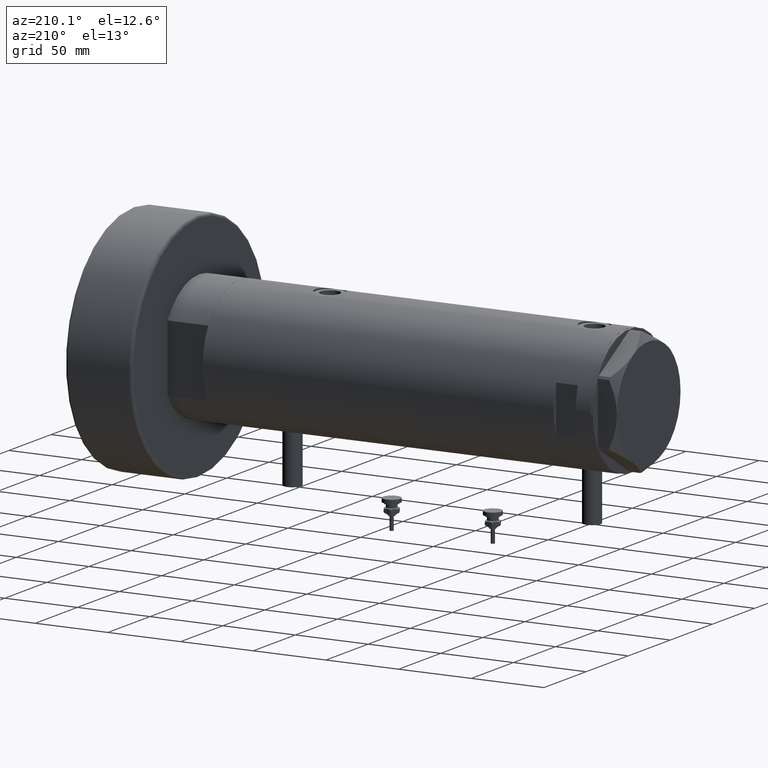
[diagram: clean part render]
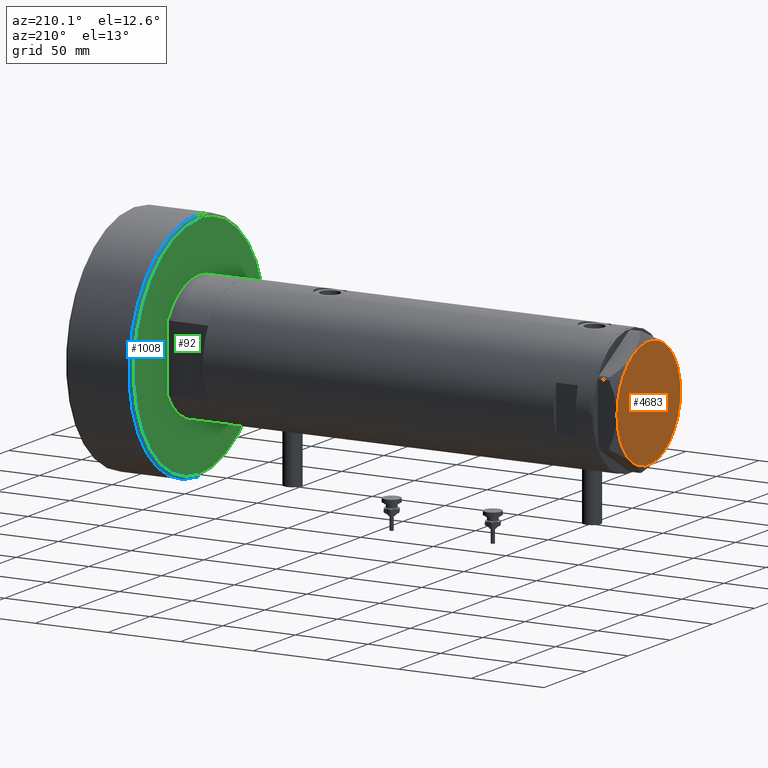
[diagram: same view with three faces highlighted in distinct colors, each labeled with its STEP entity id]
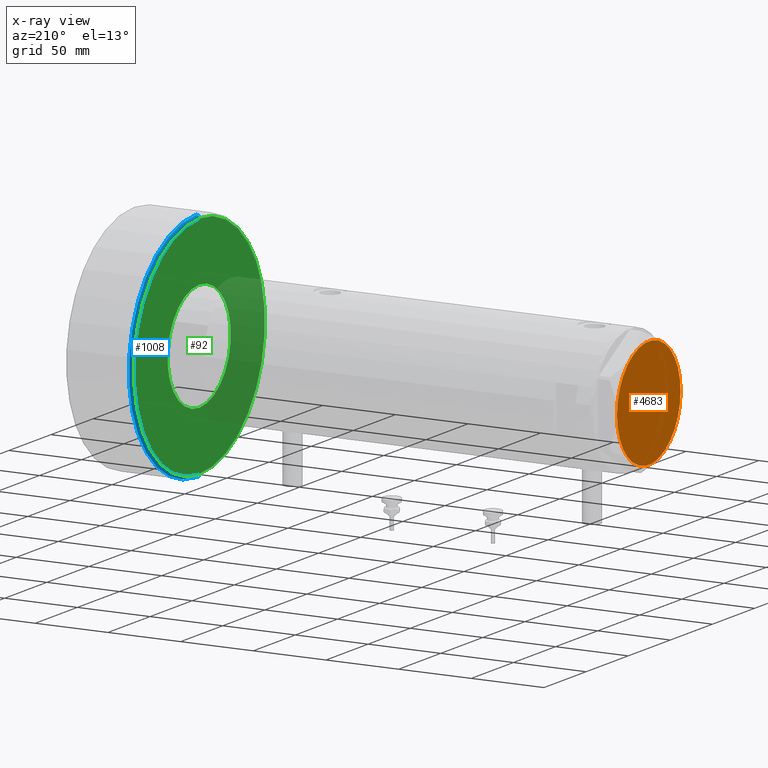
[diagram: x-ray of the same camera — body ghosted, the three highlighted faces saturated]
A machine part, auxiliary view with three faces highlighted in distinct colors.
The next image is the same camera in x-ray (body ghosted, the three faces saturated) — at least one of them is partly hidden behind the body in this view.
Their STEP definitions:

[orange] entity #4683 — the highlighted planar face has unit normal (-1, -0, 0).
#7 = AXIS2_PLACEMENT_3D ( 'NONE', #4710, #202, #2162 ) ;
#97 = CARTESIAN_POINT ( 'NONE',  ( -18.87499999999999645, 32.69245899286256218, 13.00000000000000000 ) ) ;
#184 = VERTEX_POINT ( 'NONE', #3423 ) ;
#202 = DIRECTION ( 'NONE',  ( 0.000000000000000000, 0.000000000000000000, 1.000000000000000000 ) ) ;
#214 = CARTESIAN_POINT ( 'NONE',  ( 0.000000000000000000, 0.000000000000000000, 13.00000000000000000 ) ) ;
#334 = CIRCLE ( 'NONE', #4539, 37.75000000000000000 ) ;
#441 = CARTESIAN_POINT ( 'NONE',  ( 18.87500000000000000, 32.69245899286255508, 13.00000000000000000 ) ) ;
#598 = DIRECTION ( 'NONE',  ( 0.000000000000000000, 0.000000000000000000, 1.000000000000000000 ) ) ;
#626 = ORIENTED_EDGE ( 'NONE', *, *, #4313, .T. ) ;
#634 = DIRECTION ( 'NONE',  ( 1.000000000000000000, 0.000000000000000000, 0.000000000000000000 ) ) ;
#671 = DIRECTION ( 'NONE',  ( 0.000000000000000000, 0.000000000000000000, 1.000000000000000000 ) ) ;
#780 = PLANE ( 'NONE',  #7 ) ;
#896 = DIRECTION ( 'NONE',  ( 1.000000000000000000, 0.000000000000000000, 0.000000000000000000 ) ) ;
#904 = CIRCLE ( 'NONE', #2440, 37.75000000000000000 ) ;
#949 = VERTEX_POINT ( 'NONE', #6230 ) ;
#966 = ORIENTED_EDGE ( 'NONE', *, *, #4801, .T. ) ;
#1039 = CIRCLE ( 'NONE', #3905, 37.75000000000000000 ) ;
#1079 = EDGE_CURVE ( 'NONE', #3739, #184, #1312, .T. ) ;
#1089 = EDGE_CURVE ( 'NONE', #184, #4909, #904, .T. ) ;
#1290 = DIRECTION ( 'NONE',  ( 0.000000000000000000, 0.000000000000000000, 1.000000000000000000 ) ) ;
#1312 = CIRCLE ( 'NONE', #3674, 37.75000000000000000 ) ;
#1565 = CARTESIAN_POINT ( 'NONE',  ( 0.000000000000000000, 0.000000000000000000, 13.00000000000000000 ) ) ;
#1863 = CARTESIAN_POINT ( 'NONE',  ( 0.000000000000000000, 0.000000000000000000, 13.00000000000000000 ) ) ;
#2162 = DIRECTION ( 'NONE',  ( 1.000000000000000000, 0.000000000000000000, -0.000000000000000000 ) ) ;
#2440 = AXIS2_PLACEMENT_3D ( 'NONE', #1863, #5307, #896 ) ;
#2827 = CARTESIAN_POINT ( 'NONE',  ( 0.000000000000000000, 0.000000000000000000, 13.00000000000000000 ) ) ;
#3052 = VERTEX_POINT ( 'NONE', #441 ) ;
#3251 = DIRECTION ( 'NONE',  ( 1.000000000000000000, 0.000000000000000000, 0.000000000000000000 ) ) ;
#3423 = CARTESIAN_POINT ( 'NONE',  ( -18.87499999999999645, -32.69245899286255508, 13.00000000000000000 ) ) ;
#3497 = DIRECTION ( 'NONE',  ( 1.000000000000000000, 0.000000000000000000, 0.000000000000000000 ) ) ;
#3571 = VERTEX_POINT ( 'NONE', #97 ) ;
#3583 = ORIENTED_EDGE ( 'NONE', *, *, #4644, .T. ) ;
#3674 = AXIS2_PLACEMENT_3D ( 'NONE', #2827, #5798, #6330 ) ;
#3739 = VERTEX_POINT ( 'NONE', #5543 ) ;
#3905 = AXIS2_PLACEMENT_3D ( 'NONE', #214, #4664, #6128 ) ;
#4198 = ORIENTED_EDGE ( 'NONE', *, *, #1079, .T. ) ;
#4313 = EDGE_CURVE ( 'NONE', #949, #3052, #1039, .T. ) ;
#4331 = AXIS2_PLACEMENT_3D ( 'NONE', #5951, #671, #3497 ) ;
#4539 = AXIS2_PLACEMENT_3D ( 'NONE', #1565, #598, #634 ) ;
#4644 = EDGE_CURVE ( 'NONE', #4909, #949, #6202, .T. ) ;
#4651 = AXIS2_PLACEMENT_3D ( 'NONE', #5706, #1290, #3251 ) ;
#4664 = DIRECTION ( 'NONE',  ( 0.000000000000000000, 0.000000000000000000, 1.000000000000000000 ) ) ;
#4683 = ADVANCED_FACE ( 'NONE', ( #5129 ), #780, .T. ) ;
#4710 = CARTESIAN_POINT ( 'NONE',  ( 0.000000000000000000, 0.000000000000000000, 13.00000000000000000 ) ) ;
#4801 = EDGE_CURVE ( 'NONE', #3571, #3739, #5058, .T. ) ;
#4909 = VERTEX_POINT ( 'NONE', #5809 ) ;
#5044 = ORIENTED_EDGE ( 'NONE', *, *, #5486, .T. ) ;
#5058 = CIRCLE ( 'NONE', #4651, 37.75000000000000000 ) ;
#5129 = FACE_OUTER_BOUND ( 'NONE', #5881, .T. ) ;
#5307 = DIRECTION ( 'NONE',  ( 0.000000000000000000, 0.000000000000000000, 1.000000000000000000 ) ) ;
#5486 = EDGE_CURVE ( 'NONE', #3052, #3571, #334, .T. ) ;
#5543 = CARTESIAN_POINT ( 'NONE',  ( -37.75000000000000000, -1.201851678989727067E-14, 13.00000000000000000 ) ) ;
#5706 = CARTESIAN_POINT ( 'NONE',  ( 0.000000000000000000, 0.000000000000000000, 13.00000000000000000 ) ) ;
#5719 = ORIENTED_EDGE ( 'NONE', *, *, #1089, .T. ) ;
#5798 = DIRECTION ( 'NONE',  ( 0.000000000000000000, 0.000000000000000000, 1.000000000000000000 ) ) ;
#5809 = CARTESIAN_POINT ( 'NONE',  ( 18.87499999999998579, -32.69245899286256218, 13.00000000000000000 ) ) ;
#5881 = EDGE_LOOP ( 'NONE', ( #3583, #626, #5044, #966, #4198, #5719 ) ) ;
#5951 = CARTESIAN_POINT ( 'NONE',  ( 0.000000000000000000, 0.000000000000000000, 13.00000000000000000 ) ) ;
#6128 = DIRECTION ( 'NONE',  ( 1.000000000000000000, 0.000000000000000000, 0.000000000000000000 ) ) ;
#6202 = CIRCLE ( 'NONE', #4331, 37.75000000000000000 ) ;
#6230 = CARTESIAN_POINT ( 'NONE',  ( 37.75000000000000711, 1.802777518484591547E-14, 13.00000000000000000 ) ) ;
#6330 = DIRECTION ( 'NONE',  ( 1.000000000000000000, 0.000000000000000000, 0.000000000000000000 ) ) ;

[blue] entity #1008 — the highlighted toroidal blend (fillet) surface has major radius 78 mm and minor (blend) radius 2 mm.
#223 = AXIS2_PLACEMENT_3D ( 'NONE', #5013, #2628, #2042 ) ;
#285 = DIRECTION ( 'NONE',  ( 0.000000000000000000, 0.000000000000000000, 1.000000000000000000 ) ) ;
#320 = DIRECTION ( 'NONE',  ( 1.000000000000000000, 0.000000000000000000, 0.000000000000000000 ) ) ;
#1001 = AXIS2_PLACEMENT_3D ( 'NONE', #4802, #285, #320 ) ;
#1008 = ADVANCED_FACE ( 'NONE', ( #2344 ), #5738, .T. ) ;
#1042 = EDGE_CURVE ( 'NONE', #5789, #2592, #3263, .T. ) ;
#1112 = AXIS2_PLACEMENT_3D ( 'NONE', #2306, #1857, #3810 ) ;
#1116 = CARTESIAN_POINT ( 'NONE',  ( -80.00000000000000000, 0.000000000000000000, 2.000000000000001776 ) ) ;
#1447 = EDGE_CURVE ( 'NONE', #3933, #5789, #6274, .T. ) ;
#1789 = ORIENTED_EDGE ( 'NONE', *, *, #1042, .F. ) ;
#1829 = DIRECTION ( 'NONE',  ( 1.000000000000000000, 0.000000000000000000, 0.000000000000000000 ) ) ;
#1857 = DIRECTION ( 'NONE',  ( 0.000000000000000000, -1.000000000000000000, 0.000000000000000000 ) ) ;
#2022 = CARTESIAN_POINT ( 'NONE',  ( -78.00000000000000000, 9.552245033349355756E-15, 2.000000000000001776 ) ) ;
#2042 = DIRECTION ( 'NONE',  ( 1.000000000000000000, 0.000000000000000000, 0.000000000000000000 ) ) ;
#2106 = CARTESIAN_POINT ( 'NONE',  ( 80.00000000000000000, 9.797174393178826052E-15, 2.000000000000001776 ) ) ;
#2306 = CARTESIAN_POINT ( 'NONE',  ( 78.00000000000000000, 0.000000000000000000, 2.000000000000001776 ) ) ;
#2344 = FACE_OUTER_BOUND ( 'NONE', #2631, .T. ) ;
#2345 = ORIENTED_EDGE ( 'NONE', *, *, #5104, .T. ) ;
#2463 = CARTESIAN_POINT ( 'NONE',  ( 78.00000000000000000, 0.000000000000000000, 0.000000000000000000 ) ) ;
#2513 = DIRECTION ( 'NONE',  ( -1.000000000000000000, 1.224646799147349509E-16, 0.000000000000000000 ) ) ;
#2592 = VERTEX_POINT ( 'NONE', #1116 ) ;
#2628 = DIRECTION ( 'NONE',  ( -0.000000000000000000, -0.000000000000000000, -1.000000000000000000 ) ) ;
#2631 = EDGE_LOOP ( 'NONE', ( #4890, #2345, #1789, #5890 ) ) ;
#2986 = AXIS2_PLACEMENT_3D ( 'NONE', #2022, #3920, #2513 ) ;
#3084 = VERTEX_POINT ( 'NONE', #4357 ) ;
#3263 = CIRCLE ( 'NONE', #4819, 80.00000000000000000 ) ;
#3810 = DIRECTION ( 'NONE',  ( 0.000000000000000000, 0.000000000000000000, -1.000000000000000000 ) ) ;
#3920 = DIRECTION ( 'NONE',  ( 1.224646799147353207E-16, 1.000000000000000000, -0.000000000000000000 ) ) ;
#3933 = VERTEX_POINT ( 'NONE', #2463 ) ;
#4357 = CARTESIAN_POINT ( 'NONE',  ( -78.00000000000000000, 9.674709713264090904E-15, 0.000000000000000000 ) ) ;
#4634 = EDGE_CURVE ( 'NONE', #3084, #3933, #5359, .T. ) ;
#4769 = DIRECTION ( 'NONE',  ( 0.000000000000000000, 0.000000000000000000, 1.000000000000000000 ) ) ;
#4802 = CARTESIAN_POINT ( 'NONE',  ( 0.000000000000000000, 0.000000000000000000, 2.000000000000001776 ) ) ;
#4819 = AXIS2_PLACEMENT_3D ( 'NONE', #6294, #4769, #1829 ) ;
#4890 = ORIENTED_EDGE ( 'NONE', *, *, #4634, .F. ) ;
#5013 = CARTESIAN_POINT ( 'NONE',  ( 0.000000000000000000, 0.000000000000000000, 0.000000000000000000 ) ) ;
#5104 = EDGE_CURVE ( 'NONE', #3084, #2592, #5779, .T. ) ;
#5359 = CIRCLE ( 'NONE', #223, 78.00000000000000000 ) ;
#5738 = TOROIDAL_SURFACE ( 'NONE', #1001, 78.00000000000000000, 2.000000000000000000 ) ;
#5779 = CIRCLE ( 'NONE', #2986, 2.000000000000001776 ) ;
#5789 = VERTEX_POINT ( 'NONE', #2106 ) ;
#5890 = ORIENTED_EDGE ( 'NONE', *, *, #1447, .F. ) ;
#6274 = CIRCLE ( 'NONE', #1112, 2.000000000000000000 ) ;
#6294 = CARTESIAN_POINT ( 'NONE',  ( 0.000000000000000000, 0.000000000000000000, 2.000000000000001776 ) ) ;

[green] entity #92 — the highlighted planar face has unit normal (1, 0, -0).
#71 = CARTESIAN_POINT ( 'NONE',  ( 37.50000000000000711, 0.000000000000000000, 0.000000000000000000 ) ) ;
#92 = ADVANCED_FACE ( 'NONE', ( #1002, #5970 ), #980, .F. ) ;
#110 = DIRECTION ( 'NONE',  ( 0.000000000000000000, 0.000000000000000000, 1.000000000000000000 ) ) ;
#223 = AXIS2_PLACEMENT_3D ( 'NONE', #5013, #2628, #2042 ) ;
#565 = DIRECTION ( 'NONE',  ( 1.000000000000000000, 0.000000000000000000, 0.000000000000000000 ) ) ;
#664 = DIRECTION ( 'NONE',  ( 0.000000000000000000, 0.000000000000000000, 1.000000000000000000 ) ) ;
#681 = DIRECTION ( 'NONE',  ( 1.000000000000000000, 0.000000000000000000, 0.000000000000000000 ) ) ;
#806 = CIRCLE ( 'NONE', #2654, 37.50000000000000711 ) ;
#946 = AXIS2_PLACEMENT_3D ( 'NONE', #2000, #6367, #4906 ) ;
#980 = PLANE ( 'NONE',  #946 ) ;
#1002 = FACE_OUTER_BOUND ( 'NONE', #2781, .T. ) ;
#1201 = ORIENTED_EDGE ( 'NONE', *, *, #1672, .T. ) ;
#1434 = ORIENTED_EDGE ( 'NONE', *, *, #4634, .T. ) ;
#1560 = CARTESIAN_POINT ( 'NONE',  ( 0.000000000000000000, 0.000000000000000000, 0.000000000000000000 ) ) ;
#1672 = EDGE_CURVE ( 'NONE', #6193, #4473, #3060, .T. ) ;
#1694 = EDGE_CURVE ( 'NONE', #4473, #6193, #806, .T. ) ;
#1917 = EDGE_LOOP ( 'NONE', ( #5758, #1201 ) ) ;
#2000 = CARTESIAN_POINT ( 'NONE',  ( 0.000000000000000000, 0.000000000000000000, 0.000000000000000000 ) ) ;
#2042 = DIRECTION ( 'NONE',  ( 1.000000000000000000, 0.000000000000000000, 0.000000000000000000 ) ) ;
#2463 = CARTESIAN_POINT ( 'NONE',  ( 78.00000000000000000, 0.000000000000000000, 0.000000000000000000 ) ) ;
#2622 = DIRECTION ( 'NONE',  ( 1.000000000000000000, 0.000000000000000000, 0.000000000000000000 ) ) ;
#2628 = DIRECTION ( 'NONE',  ( -0.000000000000000000, -0.000000000000000000, -1.000000000000000000 ) ) ;
#2654 = AXIS2_PLACEMENT_3D ( 'NONE', #3653, #110, #2622 ) ;
#2694 = AXIS2_PLACEMENT_3D ( 'NONE', #3117, #4116, #681 ) ;
#2781 = EDGE_LOOP ( 'NONE', ( #3121, #1434 ) ) ;
#3060 = CIRCLE ( 'NONE', #5328, 37.50000000000000711 ) ;
#3084 = VERTEX_POINT ( 'NONE', #4357 ) ;
#3117 = CARTESIAN_POINT ( 'NONE',  ( 0.000000000000000000, 0.000000000000000000, 0.000000000000000000 ) ) ;
#3121 = ORIENTED_EDGE ( 'NONE', *, *, #5190, .T. ) ;
#3653 = CARTESIAN_POINT ( 'NONE',  ( 0.000000000000000000, 0.000000000000000000, 0.000000000000000000 ) ) ;
#3933 = VERTEX_POINT ( 'NONE', #2463 ) ;
#4116 = DIRECTION ( 'NONE',  ( -0.000000000000000000, -0.000000000000000000, -1.000000000000000000 ) ) ;
#4357 = CARTESIAN_POINT ( 'NONE',  ( -78.00000000000000000, 9.674709713264090904E-15, 0.000000000000000000 ) ) ;
#4473 = VERTEX_POINT ( 'NONE', #71 ) ;
#4634 = EDGE_CURVE ( 'NONE', #3084, #3933, #5359, .T. ) ;
#4657 = CIRCLE ( 'NONE', #2694, 78.00000000000000000 ) ;
#4906 = DIRECTION ( 'NONE',  ( 1.000000000000000000, 0.000000000000000000, -0.000000000000000000 ) ) ;
#5013 = CARTESIAN_POINT ( 'NONE',  ( 0.000000000000000000, 0.000000000000000000, 0.000000000000000000 ) ) ;
#5034 = CARTESIAN_POINT ( 'NONE',  ( -37.50000000000000711, 4.592425496802575156E-15, 0.000000000000000000 ) ) ;
#5190 = EDGE_CURVE ( 'NONE', #3933, #3084, #4657, .T. ) ;
#5328 = AXIS2_PLACEMENT_3D ( 'NONE', #1560, #664, #565 ) ;
#5359 = CIRCLE ( 'NONE', #223, 78.00000000000000000 ) ;
#5758 = ORIENTED_EDGE ( 'NONE', *, *, #1694, .T. ) ;
#5970 = FACE_BOUND ( 'NONE', #1917, .T. ) ;
#6193 = VERTEX_POINT ( 'NONE', #5034 ) ;
#6367 = DIRECTION ( 'NONE',  ( 0.000000000000000000, 0.000000000000000000, 1.000000000000000000 ) ) ;